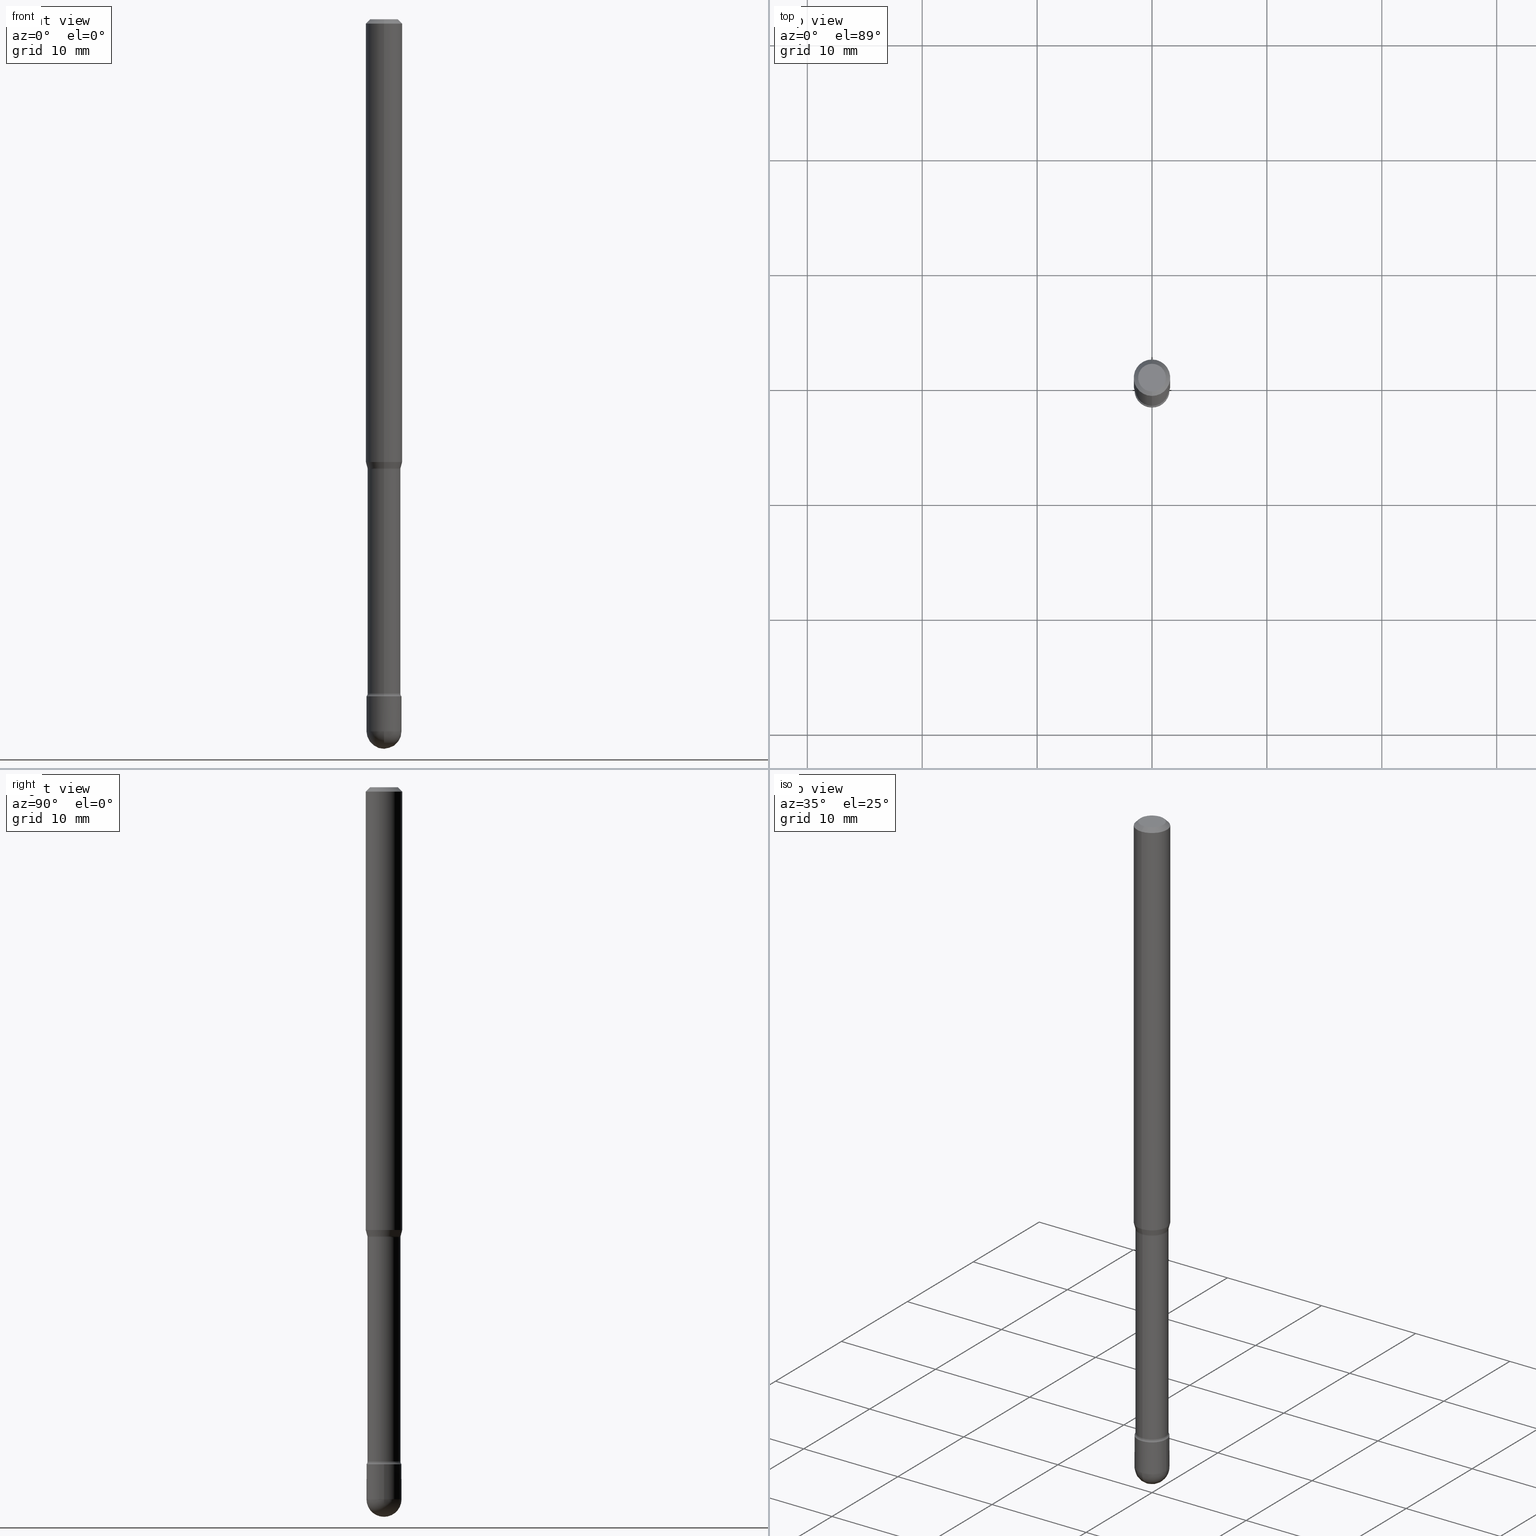
[diagram: canonical four-view strip — front | top / right | iso, engineering-drawing reading convention]
A machine part, canonical four-view strip (front | top / right | iso — engineering-drawing reading convention). The complete STEP part file that produces these views, byte-faithful:
ISO-10303-21;
HEADER;
FILE_DESCRIPTION (( 'STEP AP203' ),
    '1' );
FILE_NAME ('03885.STEP',
    '2024-04-09T20:57:08',
    ( '' ),
    ( '' ),
    'SwSTEP 2.0',
    'SolidWorks 2023',
    '' );
FILE_SCHEMA (( 'CONFIG_CONTROL_DESIGN' ));
ENDSEC;

DATA;
#1 = PLANE ( 'NONE',  #89 ) ;
#2 = APPROVAL_STATUS ( 'not_yet_approved' ) ;
#3 = ORIENTED_EDGE ( 'NONE', *, *, #251, .T. ) ;
#4 = DIRECTION ( 'NONE',  ( -2.445515084970645769E-29, 3.491415064988271555E-15, 1.000000000000000000 ) ) ;
#5 = SPHERICAL_SURFACE ( 'NONE', #43, 0.05999999999999994921 ) ;
#6 = COORDINATED_UNIVERSAL_TIME_OFFSET ( 5, 0, .BEHIND. ) ;
#7 = AXIS2_PLACEMENT_3D ( 'NONE', #273, #447, #68 ) ;
#8 = EDGE_CURVE ( 'NONE', #313, #351, #506, .T. ) ;
#9 = AXIS2_PLACEMENT_3D ( 'NONE', #411, #370, #40 ) ;
#10 = CIRCLE ( 'NONE', #266, 0.04749999999999999362 ) ;
#11 = DIRECTION ( 'NONE',  ( -6.982962677686265133E-15, -1.000000000000000000, 4.843702116425993696E-15 ) ) ;
#12 = ORIENTED_EDGE ( 'NONE', *, *, #186, .T. ) ;
#13 = ADVANCED_FACE ( 'NONE', ( #66 ), #120, .F. ) ;
#14 = ORIENTED_EDGE ( 'NONE', *, *, #61, .F. ) ;
#15 = DIRECTION ( 'NONE',  ( 1.000000000000000000, -6.982962677686266711E-15, 4.876176775795935793E-29 ) ) ;
#16 = PERSON_AND_ORGANIZATION ( #462, #459 ) ;
#17 = CONICAL_SURFACE ( 'NONE', #480, 0.06250000000000000000, 0.7853981633974483900 ) ;
#18 = CIRCLE ( 'NONE', #151, 0.05999999999999999778 ) ;
#19 = CARTESIAN_POINT ( 'NONE',  ( 3.668272627455988517E-31, -5.237122597482436421E-17, -0.01500000000000008271 ) ) ;
#20 = APPROVAL_STATUS ( 'not_yet_approved' ) ;
#21 = EDGE_CURVE ( 'NONE', #530, #441, #317, .T. ) ;
#22 = COORDINATED_UNIVERSAL_TIME_OFFSET ( 5, 0, .BEHIND. ) ;
#23 = VERTEX_POINT ( 'NONE', #393 ) ;
#24 = CIRCLE ( 'NONE', #326, 0.01500000000000003587 ) ;
#25 = APPROVAL_PERSON_ORGANIZATION ( #16, #461, #373 ) ;
#26 = VERTEX_POINT ( 'NONE', #184 ) ;
#27 = VERTEX_POINT ( 'NONE', #350 ) ;
#28 = CC_DESIGN_PERSON_AND_ORGANIZATION_ASSIGNMENT ( #247, #84, ( #44 ) ) ;
#29 = CARTESIAN_POINT ( 'NONE',  ( 3.710419832913296213E-29, -5.297295355763567225E-15, -1.517234490073829711 ) ) ;
#30 = CARTESIAN_POINT ( 'NONE',  ( -3.938390950215054539E-16, -0.05640000000000001262, 6.749892085565846117E-16 ) ) ;
#31 = DIRECTION ( 'NONE',  ( -6.982962677686265922E-15, -1.000000000000000000, 3.491415064988271555E-15 ) ) ;
#32 = ORIENTED_EDGE ( 'NONE', *, *, #423, .T. ) ;
#33 = AXIS2_PLACEMENT_3D ( 'NONE', #37, #127, #207 ) ;
#34 = CIRCLE ( 'NONE', #60, 0.05999999999999999778 ) ;
#35 = DIRECTION ( 'NONE',  ( -2.445515084970645769E-29, 3.491415064988271555E-15, 1.000000000000000000 ) ) ;
#36 = DIRECTION ( 'NONE',  ( 1.000000000000000000, -6.982962677686268288E-15, 0.000000000000000000 ) ) ;
#37 = CARTESIAN_POINT ( 'NONE',  ( 3.770851242666705328E-29, -5.383776195396521708E-15, -1.541974787463811003 ) ) ;
#38 = DIRECTION ( 'NONE',  ( -2.445515084970645769E-29, 3.491415064988271555E-15, 1.000000000000000000 ) ) ;
#39 = ADVANCED_FACE ( 'NONE', ( #543 ), #139, .T. ) ;
#40 = DIRECTION ( 'NONE',  ( 1.000000000000000000, -6.982962677686269077E-15, 0.000000000000000000 ) ) ;
#41 = FACE_OUTER_BOUND ( 'NONE', #371, .T. ) ;
#42 = AXIS2_PLACEMENT_3D ( 'NONE', #102, #492, #270 ) ;
#43 = AXIS2_PLACEMENT_3D ( 'NONE', #123, #383, #382 ) ;
#44 = PRODUCT_DEFINITION ( 'UNKNOWN', '', #91, #141 ) ;
#45 = CARTESIAN_POINT ( 'NONE',  ( 5.966943887091733341E-29, -8.519214466777275048E-15, -2.440000000000000391 ) ) ;
#46 = FACE_OUTER_BOUND ( 'NONE', #134, .T. ) ;
#47 = CALENDAR_DATE ( 2024, 9, 4 ) ;
#48 = DIRECTION ( 'NONE',  ( -2.445515084970645769E-29, 3.491415064988271555E-15, 1.000000000000000000 ) ) ;
#49 = DIRECTION ( 'NONE',  ( 6.982962677686265922E-15, 1.000000000000000000, -3.483106191921935554E-15 ) ) ;
#50 = CIRCLE ( 'NONE', #562, 0.06250000000000000000 ) ;
#51 = ORIENTED_EDGE ( 'NONE', *, *, #521, .T. ) ;
#52 = AXIS2_PLACEMENT_3D ( 'NONE', #107, #279, #36 ) ;
#53 = FACE_OUTER_BOUND ( 'NONE', #158, .T. ) ;
#54 = DATE_TIME_ROLE ( 'creation_date' ) ;
#55 = CARTESIAN_POINT ( 'NONE',  ( 4.135358722124351185E-16, 0.05639999999999198432, -2.310251153914437250 ) ) ;
#56 = DIRECTION ( 'NONE',  ( 6.982962677686265922E-15, 1.000000000000000000, -3.491415064988271555E-15 ) ) ;
#57 = EDGE_LOOP ( 'NONE', ( #153, #170, #51, #548, #63 ) ) ;
#58 = DIRECTION ( 'NONE',  ( -6.982962677686265922E-15, -1.000000000000000000, 3.483106191921935554E-15 ) ) ;
#59 = VECTOR ( 'NONE', #452, 39.37007874015748143 ) ;
#60 = AXIS2_PLACEMENT_3D ( 'NONE', #283, #321, #508 ) ;
#61 = EDGE_CURVE ( 'NONE', #192, #442, #67, .T. ) ;
#62 = DIRECTION ( 'NONE',  ( -1.000000000000000000, 6.982962677686265922E-15, -4.883557194083112340E-29 ) ) ;
#63 = ORIENTED_EDGE ( 'NONE', *, *, #362, .F. ) ;
#64 = CARTESIAN_POINT ( 'NONE',  ( -0.05999999999999999084, -7.883399944990626241E-15, -2.440000000000000391 ) ) ;
#65 = EDGE_CURVE ( 'NONE', #346, #160, #99, .T. ) ;
#66 = FACE_OUTER_BOUND ( 'NONE', #208, .T. ) ;
#67 = CIRCLE ( 'NONE', #211, 0.05691111260566396324 ) ;
#68 = DIRECTION ( 'NONE',  ( -6.982962677686265922E-15, -1.000000000000000000, 3.491415064988271555E-15 ) ) ;
#69 = DIRECTION ( 'NONE',  ( -2.445515084970645769E-29, 3.491415064988271555E-15, 1.000000000000000000 ) ) ;
#70 = CARTESIAN_POINT ( 'NONE',  ( -4.263256414560001423E-16, -0.06000000000000849792, -2.439999999999999947 ) ) ;
#71 = DIRECTION ( 'NONE',  ( -2.445515084970645769E-29, 3.491415064988271555E-15, 1.000000000000000000 ) ) ;
#72 = VERTEX_POINT ( 'NONE', #231 ) ;
#73 = CARTESIAN_POINT ( 'NONE',  ( 4.007461029687530474E-16, 0.05639999999999459335, -1.541974787463811225 ) ) ;
#74 = EDGE_LOOP ( 'NONE', ( #156, #299 ) ) ;
#75 = CARTESIAN_POINT ( 'NONE',  ( 3.761428415201016169E-29, -5.370119332085585633E-15, -1.538092501787273081 ) ) ;
#76 = CIRCLE ( 'NONE', #136, 0.01500000000000001853 ) ;
#77 = EDGE_CURVE ( 'NONE', #538, #189, #425, .T. ) ;
#78 = CONICAL_SURFACE ( 'NONE', #318, 0.05691111260566396324, 0.2617993877991485197 ) ;
#79 = DIRECTION ( 'NONE',  ( -2.445515084970645769E-29, 3.491415064988271555E-15, 1.000000000000000000 ) ) ;
#80 = EDGE_LOOP ( 'NONE', ( #485, #399 ) ) ;
#81 = CARTESIAN_POINT ( 'NONE',  ( -4.364351673553912750E-16, -0.06250000000000005551, -0.01499999999999986587 ) ) ;
#82 = EDGE_CURVE ( 'NONE', #446, #72, #50, .T. ) ;
#83 = CONICAL_SURFACE ( 'NONE', #408, 0.05691111260566396324, 0.2617993877991485197 ) ;
#84 = PERSON_AND_ORGANIZATION_ROLE ( 'creator' ) ;
#85 = VERTEX_POINT ( 'NONE', #70 ) ;
#86 = ORIENTED_EDGE ( 'NONE', *, *, #21, .T. ) ;
#87 = DIRECTION ( 'NONE',  ( -2.445515084970645769E-29, 3.491415064988271555E-15, 1.000000000000000000 ) ) ;
#88 = DIRECTION ( 'NONE',  ( -6.982962677686272233E-15, -1.000000000000000000, 0.000000000000000000 ) ) ;
#89 = AXIS2_PLACEMENT_3D ( 'NONE', #526, #520, #332 ) ;
#90 = ORIENTED_EDGE ( 'NONE', *, *, #111, .F. ) ;
#91 = PRODUCT_DEFINITION_FORMATION_WITH_SPECIFIED_SOURCE ( 'ANY', '', #487, .NOT_KNOWN. ) ;
#92 = ORIENTED_EDGE ( 'NONE', *, *, #8, .F. ) ;
#93 = CARTESIAN_POINT ( 'NONE',  ( 2.023889383251110788E-45, -2.888835415935318320E-31, -8.275018007965190757E-17 ) ) ;
#94 = EDGE_CURVE ( 'NONE', #442, #72, #396, .T. ) ;
#95 = CIRCLE ( 'NONE', #163, 0.05640000000000005426 ) ;
#96 = AXIS2_PLACEMENT_3D ( 'NONE', #363, #557, #110 ) ;
#97 = CC_DESIGN_DATE_AND_TIME_ASSIGNMENT ( #483, #301, ( #349 ) ) ;
#98 = PERSON_AND_ORGANIZATION_ROLE ( 'creator' ) ;
#99 = LINE ( 'NONE', #30, #375 ) ;
#100 =( LENGTH_UNIT ( ) NAMED_UNIT ( * ) SI_UNIT ( $, .METRE. ) );
#101 = PLANE ( 'NONE',  #7 ) ;
#102 = CARTESIAN_POINT ( 'NONE',  ( 3.668272627455988517E-31, -5.237122597482436421E-17, -0.01500000000000008271 ) ) ;
#103 = CIRCLE ( 'NONE', #239, 0.05639999999999997793 ) ;
#104 = CIRCLE ( 'NONE', #341, 0.05999999999999999084 ) ;
#105 = DIRECTION ( 'NONE',  ( -6.982962677686265922E-15, -1.000000000000000000, 4.553079989440439092E-15 ) ) ;
#106 = ORIENTED_EDGE ( 'NONE', *, *, #286, .T. ) ;
#107 = CARTESIAN_POINT ( 'NONE',  ( 5.673487630349517039E-29, -8.100236706116098414E-15, -2.320000000000000284 ) ) ;
#108 = CARTESIAN_POINT ( 'NONE',  ( 3.770922603387154700E-29, -5.383674002783237987E-15, -1.541974787463811003 ) ) ;
#109 = CARTESIAN_POINT ( 'NONE',  ( -0.05999999999999999084, 4.263256414560600464E-16, -2.951361054152942712E-30 ) ) ;
#110 = DIRECTION ( 'NONE',  ( -6.982962677686265133E-15, -1.000000000000000000, 4.843702116425993696E-15 ) ) ;
#111 = EDGE_CURVE ( 'NONE', #192, #446, #268, .T. ) ;
#112 = LOCAL_TIME ( 16, 57, 8.000000000000000000, #564 ) ;
#113 = DIMENSIONAL_EXPONENTS ( 1.000000000000000000, 0.000000000000000000, 0.000000000000000000, 0.000000000000000000, 0.000000000000000000, 0.000000000000000000, 0.000000000000000000 ) ;
#114 = ORIENTED_EDGE ( 'NONE', *, *, #352, .F. ) ;
#115 = APPLICATION_PROTOCOL_DEFINITION ( 'international standard', 'config_control_design', 1994, #389 ) ;
#116 = DIRECTION ( 'NONE',  ( -2.445468806185136597E-29, 3.491481338843145583E-15, 1.000000000000000000 ) ) ;
#117 = CC_DESIGN_PERSON_AND_ORGANIZATION_ASSIGNMENT ( #119, #560, ( #487 ) ) ;
#118 = FACE_OUTER_BOUND ( 'NONE', #80, .T. ) ;
#119 = PERSON_AND_ORGANIZATION ( #462, #459 ) ;
#120 = TOROIDAL_SURFACE ( 'NONE', #176, 0.07140000000000008840, 0.01500000000000003587 ) ;
#121 = CIRCLE ( 'NONE', #52, 0.05999999999999999778 ) ;
#122 = DATE_AND_TIME ( #161, #212 ) ;
#123 = CARTESIAN_POINT ( 'NONE',  ( 5.966943887091733341E-29, -8.519214466777275048E-15, -2.440000000000000391 ) ) ;
#124 = CARTESIAN_POINT ( 'NONE',  ( 0.000000000000000000, 0.000000000000000000, 0.000000000000000000 ) ) ;
#125 = EDGE_CURVE ( 'NONE', #72, #446, #202, .T. ) ;
#126 = APPLICATION_CONTEXT ( 'configuration controlled 3d designs of mechanical parts and assemblies' ) ;
#127 = DIRECTION ( 'NONE',  ( -2.445515084970645769E-29, 3.491415064988271555E-15, 1.000000000000000000 ) ) ;
#128 = FACE_OUTER_BOUND ( 'NONE', #354, .T. ) ;
#129 = ORIENTED_EDGE ( 'NONE', *, *, #423, .F. ) ;
#130 = FACE_OUTER_BOUND ( 'NONE', #57, .T. ) ;
#131 = ORIENTED_EDGE ( 'NONE', *, *, #440, .T. ) ;
#132 = AXIS2_PLACEMENT_3D ( 'NONE', #242, #200, #364 ) ;
#133 = EDGE_CURVE ( 'NONE', #188, #27, #277, .T. ) ;
#134 = EDGE_LOOP ( 'NONE', ( #92, #181, #430, #275 ) ) ;
#135 = EDGE_LOOP ( 'NONE', ( #474, #493, #357, #517, #197 ) ) ;
#136 = AXIS2_PLACEMENT_3D ( 'NONE', #261, #296, #88 ) ;
#137 = AXIS2_PLACEMENT_3D ( 'NONE', #465, #252, #527 ) ;
#138 = EDGE_CURVE ( 'NONE', #189, #530, #235, .T. ) ;
#139 = CYLINDRICAL_SURFACE ( 'NONE', #292, 0.05640000000000001262 ) ;
#140 = VERTEX_POINT ( 'NONE', #145 ) ;
#141 = DESIGN_CONTEXT ( 'detailed design', #389, 'design' ) ;
#142 = DIRECTION ( 'NONE',  ( -6.982962677686265922E-15, -1.000000000000000000, 4.370956789862821150E-15 ) ) ;
#143 = DIRECTION ( 'NONE',  ( -2.445515084970645769E-29, 3.491415064988271555E-15, 1.000000000000000000 ) ) ;
#144 = ORIENTED_EDGE ( 'NONE', *, *, #174, .T. ) ;
#145 = CARTESIAN_POINT ( 'NONE',  ( -4.189777606611193920E-16, -0.06000000000000811629, -2.319999999999999840 ) ) ;
#146 =( NAMED_UNIT ( * ) SI_UNIT ( $, .STERADIAN. ) SOLID_ANGLE_UNIT ( ) );
#147 = ADVANCED_FACE ( 'NONE', ( #281 ), #265, .F. ) ;
#148 = CARTESIAN_POINT ( 'NONE',  ( 0.000000000000000000, 0.000000000000000000, 0.000000000000000000 ) ) ;
#149 = EDGE_CURVE ( 'NONE', #424, #23, #361, .T. ) ;
#150 = VECTOR ( 'NONE', #541, 39.37007874015748143 ) ;
#151 = AXIS2_PLACEMENT_3D ( 'NONE', #454, #237, #561 ) ;
#152 = DIRECTION ( 'NONE',  ( 1.000000000000000000, -6.982962677686266711E-15, 4.876176775795935793E-29 ) ) ;
#153 = ORIENTED_EDGE ( 'NONE', *, *, #133, .F. ) ;
#154 = APPROVAL_DATE_TIME ( #523, #337 ) ;
#155 = DIRECTION ( 'NONE',  ( -6.982962677686265922E-15, -1.000000000000000000, 4.800201346603758890E-15 ) ) ;
#156 = ORIENTED_EDGE ( 'NONE', *, *, #342, .T. ) ;
#157 = FACE_OUTER_BOUND ( 'NONE', #303, .T. ) ;
#158 = EDGE_LOOP ( 'NONE', ( #233, #221, #227, #86 ) ) ;
#159 = CARTESIAN_POINT ( 'NONE',  ( -3.938390950214674900E-16, -0.05640000000000536251, -1.541974787463810781 ) ) ;
#160 = VERTEX_POINT ( 'NONE', #159 ) ;
#161 = CALENDAR_DATE ( 2024, 9, 4 ) ;
#162 = CARTESIAN_POINT ( 'NONE',  ( 3.316907271900976096E-16, 0.04749999999999999362, 3.181939381885421102E-17 ) ) ;
#163 = AXIS2_PLACEMENT_3D ( 'NONE', #376, #4, #11 ) ;
#164 = DATE_AND_TIME ( #213, #327 ) ;
#165 = ADVANCED_FACE ( 'NONE', ( #118 ), #1, .T. ) ;
#166 = CARTESIAN_POINT ( 'NONE',  ( -3.773273898774340269E-16, -0.04749999999999999362, 8.309203550729098388E-17 ) ) ;
#167 = LINE ( 'NONE', #175, #387 ) ;
#168 = APPROVAL_DATE_TIME ( #164, #461 ) ;
#169 = ORIENTED_EDGE ( 'NONE', *, *, #61, .T. ) ;
#170 = ORIENTED_EDGE ( 'NONE', *, *, #241, .T. ) ;
#171 = ADVANCED_FACE ( 'NONE', ( #460 ), #83, .T. ) ;
#172 = DIRECTION ( 'NONE',  ( -2.445515084970645769E-29, 3.491415064988271555E-15, 1.000000000000000000 ) ) ;
#173 = ORIENTED_EDGE ( 'NONE', *, *, #385, .F. ) ;
#174 = EDGE_CURVE ( 'NONE', #346, #313, #95, .T. ) ;
#175 = CARTESIAN_POINT ( 'NONE',  ( 0.05999999999999999084, -4.189777606611759435E-16, 2.925706065477561055E-30 ) ) ;
#176 = AXIS2_PLACEMENT_3D ( 'NONE', #537, #307, #31 ) ;
#177 = AXIS2_PLACEMENT_3D ( 'NONE', #218, #533, #300 ) ;
#178 = DIRECTION ( 'NONE',  ( -6.982962677686268288E-15, -1.000000000000000000, 0.000000000000000000 ) ) ;
#179 = EDGE_LOOP ( 'NONE', ( #90, #169, #395, #331 ) ) ;
#180 = CARTESIAN_POINT ( 'NONE',  ( 5.649647131350973229E-29, -8.066198791933100712E-15, -2.310251153914436806 ) ) ;
#181 = ORIENTED_EDGE ( 'NONE', *, *, #380, .T. ) ;
#182 = ORIENTED_EDGE ( 'NONE', *, *, #352, .T. ) ;
#183 = DATE_AND_TIME ( #269, #394 ) ;
#184 = CARTESIAN_POINT ( 'NONE',  ( 0.05999999999999999778, -8.519214466777275048E-15, -2.320000000000000284 ) ) ;
#185 = AXIS2_PLACEMENT_3D ( 'NONE', #421, #210, #49 ) ;
#186 = EDGE_CURVE ( 'NONE', #446, #530, #335, .T. ) ;
#187 = CIRCLE ( 'NONE', #137, 0.05999999999999994921 ) ;
#188 = VERTEX_POINT ( 'NONE', #64 ) ;
#189 = VERTEX_POINT ( 'NONE', #546 ) ;
#190 = EDGE_LOOP ( 'NONE', ( #278, #507, #131, #238 ) ) ;
#191 = ADVANCED_FACE ( 'NONE', ( #498 ), #101, .F. ) ;
#192 = VERTEX_POINT ( 'NONE', #230 ) ;
#193 = AXIS2_PLACEMENT_3D ( 'NONE', #272, #398, #445 ) ;
#194 = AXIS2_PLACEMENT_3D ( 'NONE', #162, #528, #56 ) ;
#195 = CARTESIAN_POINT ( 'NONE',  ( 5.673594997131898498E-29, -8.100082950772790954E-15, -2.320000000000000284 ) ) ;
#196 = CARTESIAN_POINT ( 'NONE',  ( 5.073275133327491387E-16, 0.07139999999999460667, -1.541974787463811225 ) ) ;
#197 = ORIENTED_EDGE ( 'NONE', *, *, #149, .T. ) ;
#198 = CARTESIAN_POINT ( 'NONE',  ( 3.770851242666705328E-29, -5.383776195396521708E-15, -1.541974787463811003 ) ) ;
#199 = CC_DESIGN_PERSON_AND_ORGANIZATION_ASSIGNMENT ( #429, #219, ( #349 ) ) ;
#200 = DIRECTION ( 'NONE',  ( -1.000000000000000000, 7.105427357601001070E-15, -4.926315508542082329E-29 ) ) ;
#201 = PERSON_AND_ORGANIZATION ( #462, #459 ) ;
#202 = CIRCLE ( 'NONE', #531, 0.06250000000000000000 ) ;
#203 = FACE_OUTER_BOUND ( 'NONE', #232, .T. ) ;
#204 = ORIENTED_EDGE ( 'NONE', *, *, #94, .F. ) ;
#205 = ORIENTED_EDGE ( 'NONE', *, *, #291, .F. ) ;
#206 = CARTESIAN_POINT ( 'NONE',  ( 4.440892098500625669E-16, 0.06250000000000000000, 2.598599573294790911E-16 ) ) ;
#207 = DIRECTION ( 'NONE',  ( -6.982962677686265922E-15, -1.000000000000000000, 3.491415064988271555E-15 ) ) ;
#208 = EDGE_LOOP ( 'NONE', ( #173, #384, #509, #182 ) ) ;
#209 = EDGE_CURVE ( 'NONE', #442, #192, #340, .T. ) ;
#210 = DIRECTION ( 'NONE',  ( 2.445515084970645769E-29, -3.491415064988271555E-15, -1.000000000000000000 ) ) ;
#211 = AXIS2_PLACEMENT_3D ( 'NONE', #499, #451, #453 ) ;
#212 = LOCAL_TIME ( 16, 57, 8.000000000000000000, #372 ) ;
#213 = CALENDAR_DATE ( 2024, 9, 4 ) ;
#214 = ORIENTED_EDGE ( 'NONE', *, *, #385, .T. ) ;
#215 = CYLINDRICAL_SURFACE ( 'NONE', #333, 0.05999999999999999084 ) ;
#216 = DIRECTION ( 'NONE',  ( -6.982962677686265133E-15, -1.000000000000000000, 3.491415064988270766E-15 ) ) ;
#217 = EDGE_CURVE ( 'NONE', #351, #160, #103, .T. ) ;
#218 = CARTESIAN_POINT ( 'NONE',  ( -1.169113584055446105E-44, 1.669184350826100908E-30, 4.780733988912460139E-16 ) ) ;
#219 = PERSON_AND_ORGANIZATION_ROLE ( 'classification_officer' ) ;
#220 = PRODUCT_DEFINITION_SHAPE ( 'NONE', 'NONE',  #44 ) ;
#221 = ORIENTED_EDGE ( 'NONE', *, *, #342, .F. ) ;
#222 = DIRECTION ( 'NONE',  ( 2.445515084970645769E-29, -3.491415064988271555E-15, -1.000000000000000000 ) ) ;
#223 = VECTOR ( 'NONE', #35, 39.37007874015748143 ) ;
#224 = DIRECTION ( 'NONE',  ( -2.445468806185136597E-29, 3.491481338843145583E-15, 1.000000000000000000 ) ) ;
#225 = DIRECTION ( 'NONE',  ( -1.807323732225318306E-15, -0.2588190451025164651, 0.9659258262890694224 ) ) ;
#226 = EDGE_CURVE ( 'NONE', #192, #351, #365, .T. ) ;
#227 = ORIENTED_EDGE ( 'NONE', *, *, #138, .T. ) ;
#228 = CC_DESIGN_SECURITY_CLASSIFICATION ( #349, ( #91 ) ) ;
#229 = UNCERTAINTY_MEASURE_WITH_UNIT (LENGTH_MEASURE( 1.000000000000000082E-05 ), #555, 'distance_accuracy_value', 'NONE');
#230 = CARTESIAN_POINT ( 'NONE',  ( 4.242334931549666614E-16, 0.05691111260565859253, -1.538092501787273303 ) ) ;
#231 = CARTESIAN_POINT ( 'NONE',  ( -4.364351673553543464E-16, -0.06250000000000527356, -1.517234490073829489 ) ) ;
#232 = EDGE_LOOP ( 'NONE', ( #436, #355, #479, #204 ) ) ;
#233 = ORIENTED_EDGE ( 'NONE', *, *, #234, .F. ) ;
#234 = EDGE_CURVE ( 'NONE', #538, #441, #504, .T. ) ;
#235 = LINE ( 'NONE', #401, #276 ) ;
#236 = CARTESIAN_POINT ( 'NONE',  ( 4.007461029686965452E-16, 0.05640000000000001262, 2.811575892259075641E-16 ) ) ;
#237 = DIRECTION ( 'NONE',  ( -2.445468806185136597E-29, 3.491481338843145583E-15, 1.000000000000000000 ) ) ;
#238 = ORIENTED_EDGE ( 'NONE', *, *, #21, .F. ) ;
#239 = AXIS2_PLACEMENT_3D ( 'NONE', #108, #280, #455 ) ;
#240 = AXIS2_PLACEMENT_3D ( 'NONE', #403, #79, #288 ) ;
#241 = EDGE_CURVE ( 'NONE', #188, #85, #501, .T. ) ;
#242 = CARTESIAN_POINT ( 'NONE',  ( 5.966943887091733341E-29, -8.519214466777275048E-15, -2.440000000000000391 ) ) ;
#243 = DIRECTION ( 'NONE',  ( -2.445515084970645769E-29, 3.491415064988271555E-15, 1.000000000000000000 ) ) ;
#244 = CC_DESIGN_DATE_AND_TIME_ASSIGNMENT ( #122, #54, ( #44 ) ) ;
#245 = DIRECTION ( 'NONE',  ( 6.982962677686265922E-15, 1.000000000000000000, -4.553079989440442247E-15 ) ) ;
#246 = DIRECTION ( 'NONE',  ( -2.445515084970645769E-29, 3.491415064988271555E-15, 1.000000000000000000 ) ) ;
#247 = PERSON_AND_ORGANIZATION ( #462, #459 ) ;
#248 = CONICAL_SURFACE ( 'NONE', #185, 0.06250000000000000000, 0.7853981633974483900 ) ;
#249 = VECTOR ( 'NONE', #71, 39.37007874015748143 ) ;
#250 = DIRECTION ( 'NONE',  ( 7.105427357600997914E-15, 1.000000000000000000, 0.000000000000000000 ) ) ;
#251 = EDGE_CURVE ( 'NONE', #442, #160, #76, .T. ) ;
#252 = DIRECTION ( 'NONE',  ( 1.000000000000000000, -6.982962677686265922E-15, 4.883557194083112340E-29 ) ) ;
#253 = CARTESIAN_POINT ( 'NONE',  ( 3.668272627455988517E-31, -5.237122597482436421E-17, -0.01500000000000008271 ) ) ;
#254 = CALENDAR_DATE ( 2024, 9, 4 ) ;
#255 = ORIENTED_EDGE ( 'NONE', *, *, #234, .T. ) ;
#256 = CARTESIAN_POINT ( 'NONE',  ( -4.985835351867435539E-16, -0.07140000000000815139, -2.310251153914436806 ) ) ;
#257 = VECTOR ( 'NONE', #225, 39.37007874015748143 ) ;
#258 = AXIS2_PLACEMENT_3D ( 'NONE', #458, #262, #250 ) ;
#259 = EDGE_CURVE ( 'NONE', #424, #26, #167, .T. ) ;
#260 = ORIENTED_EDGE ( 'NONE', *, *, #138, .F. ) ;
#261 = CARTESIAN_POINT ( 'NONE',  ( -4.985835351867615991E-16, -0.07140000000000537583, -1.541974787463810781 ) ) ;
#262 = DIRECTION ( 'NONE',  ( 1.000000000000000000, -7.105427357601001070E-15, 4.926314696921440222E-29 ) ) ;
#263 = DIRECTION ( 'NONE',  ( -2.445515084970645769E-29, 3.491415064988271555E-15, 1.000000000000000000 ) ) ;
#264 = FACE_OUTER_BOUND ( 'NONE', #347, .T. ) ;
#265 = TOROIDAL_SURFACE ( 'NONE', #33, 0.07139999999999999125, 0.01500000000000002720 ) ;
#266 = AXIS2_PLACEMENT_3D ( 'NONE', #93, #263, #434 ) ;
#267 = ADVANCED_FACE ( 'NONE', ( #264 ), #17, .T. ) ;
#268 = LINE ( 'NONE', #448, #522 ) ;
#269 = CALENDAR_DATE ( 2024, 9, 4 ) ;
#270 = DIRECTION ( 'NONE',  ( -6.982962677686265922E-15, -1.000000000000000000, 3.483106191921935554E-15 ) ) ;
#271 = PERSON_AND_ORGANIZATION ( #462, #459 ) ;
#272 = CARTESIAN_POINT ( 'NONE',  ( 2.023889383251110788E-45, -2.888835415935318320E-31, -8.275018007965190757E-17 ) ) ;
#273 = CARTESIAN_POINT ( 'NONE',  ( 4.189777606612326922E-16, 0.05999999999999190009, -2.320000000000000284 ) ) ;
#274 = DIRECTION ( 'NONE',  ( 7.105427357600993970E-15, 1.000000000000000000, 0.000000000000000000 ) ) ;
#275 = ORIENTED_EDGE ( 'NONE', *, *, #217, .F. ) ;
#276 = VECTOR ( 'NONE', #552, 39.37007874015748143 ) ;
#277 = LINE ( 'NONE', #109, #59 ) ;
#278 = ORIENTED_EDGE ( 'NONE', *, *, #186, .F. ) ;
#279 = DIRECTION ( 'NONE',  ( -2.445468806185136597E-29, 3.491481338843145583E-15, 1.000000000000000000 ) ) ;
#280 = DIRECTION ( 'NONE',  ( -2.445515084970645769E-29, 3.491415064988271555E-15, 1.000000000000000000 ) ) ;
#281 = FACE_OUTER_BOUND ( 'NONE', #505, .T. ) ;
#282 = VERTEX_POINT ( 'NONE', #302 ) ;
#283 = CARTESIAN_POINT ( 'NONE',  ( 5.673594997131898498E-29, -8.100082950772790954E-15, -2.320000000000000284 ) ) ;
#284 = AXIS2_PLACEMENT_3D ( 'NONE', #344, #437, #536 ) ;
#285 = CC_DESIGN_APPROVAL ( #484, ( #91 ) ) ;
#286 = EDGE_CURVE ( 'NONE', #441, #530, #457, .T. ) ;
#287 = CYLINDRICAL_SURFACE ( 'NONE', #450, 0.06250000000000000000 ) ;
#288 = DIRECTION ( 'NONE',  ( -6.982962677686265133E-15, -1.000000000000000000, 4.843702116426000796E-15 ) ) ;
#289 = MECHANICAL_CONTEXT ( 'NONE', #126, 'mechanical' ) ;
#290 = DIRECTION ( 'NONE',  ( -2.445468806185136597E-29, 3.491481338843145583E-15, 1.000000000000000000 ) ) ;
#291 = EDGE_CURVE ( 'NONE', #23, #188, #540, .T. ) ;
#292 = AXIS2_PLACEMENT_3D ( 'NONE', #311, #497, #358 ) ;
#293 = CIRCLE ( 'NONE', #308, 0.05999999999999999778 ) ;
#294 = ORIENTED_EDGE ( 'NONE', *, *, #539, .T. ) ;
#295 = CC_DESIGN_PERSON_AND_ORGANIZATION_ASSIGNMENT ( #547, #98, ( #91 ) ) ;
#296 = DIRECTION ( 'NONE',  ( -1.000000000000000000, 6.982962677686265922E-15, -4.883557194083112340E-29 ) ) ;
#297 = DIRECTION ( 'NONE',  ( -6.982962677686265922E-15, -1.000000000000000000, 3.491415064988271555E-15 ) ) ;
#298 = AXIS2_PLACEMENT_3D ( 'NONE', #196, #314, #274 ) ;
#299 = ORIENTED_EDGE ( 'NONE', *, *, #77, .T. ) ;
#300 = DIRECTION ( 'NONE',  ( -6.982962677686265922E-15, -1.000000000000000000, 3.491415064988271949E-15 ) ) ;
#301 = DATE_TIME_ROLE ( 'classification_date' ) ;
#302 = CARTESIAN_POINT ( 'NONE',  ( 4.263256414561169430E-16, 0.05999999999999191397, -2.320000000000000284 ) ) ;
#303 = EDGE_LOOP ( 'NONE', ( #435, #466, #489, #205 ) ) ;
#304 = ADVANCED_FACE ( 'NONE', ( #53 ), #248, .T. ) ;
#305 = AXIS2_PLACEMENT_3D ( 'NONE', #486, #224, #391 ) ;
#306 = VECTOR ( 'NONE', #463, 39.37007874015748143 ) ;
#307 = DIRECTION ( 'NONE',  ( -2.445515084970645769E-29, 3.491415064988271555E-15, 1.000000000000000000 ) ) ;
#308 = AXIS2_PLACEMENT_3D ( 'NONE', #195, #243, #105 ) ;
#309 = ORIENTED_EDGE ( 'NONE', *, *, #432, .F. ) ;
#310 = MANIFOLD_SOLID_BREP ( 'Body-Move/Copy2[1]', #449 ) ;
#311 = CARTESIAN_POINT ( 'NONE',  ( -1.169113584055446105E-44, 1.669184350826100908E-30, 4.780733988912460139E-16 ) ) ;
#312 = ADVANCED_FACE ( 'NONE', ( #128 ), #348, .F. ) ;
#313 = VERTEX_POINT ( 'NONE', #55 ) ;
#314 = DIRECTION ( 'NONE',  ( 1.000000000000000000, -7.105427357601001070E-15, 4.926314696921440222E-29 ) ) ;
#315 = DIRECTION ( 'NONE',  ( -6.982962677686265922E-15, -1.000000000000000000, 4.370956789862821150E-15 ) ) ;
#316 = EDGE_LOOP ( 'NONE', ( #114, #129 ) ) ;
#317 = CIRCLE ( 'NONE', #42, 0.06250000000000000000 ) ;
#318 = AXIS2_PLACEMENT_3D ( 'NONE', #405, #38, #324 ) ;
#319 = ORIENTED_EDGE ( 'NONE', *, *, #251, .F. ) ;
#320 = EDGE_LOOP ( 'NONE', ( #336, #294, #554, #400 ) ) ;
#321 = DIRECTION ( 'NONE',  ( -2.445515084970645769E-29, 3.491415064988271555E-15, 1.000000000000000000 ) ) ;
#322 = DIRECTION ( 'NONE',  ( -2.445515084970645769E-29, 3.491415064988271555E-15, 1.000000000000000000 ) ) ;
#323 = EDGE_CURVE ( 'NONE', #346, #140, #24, .T. ) ;
#324 = DIRECTION ( 'NONE',  ( -6.982962677686265922E-15, -1.000000000000000000, 4.800201346603758890E-15 ) ) ;
#325 = EDGE_LOOP ( 'NONE', ( #144, #511, #309, #343 ) ) ;
#326 = AXIS2_PLACEMENT_3D ( 'NONE', #256, #62, #178 ) ;
#327 = LOCAL_TIME ( 16, 57, 8.000000000000000000, #6 ) ;
#328 = SPHERICAL_SURFACE ( 'NONE', #470, 0.05999999999999994921 ) ;
#329 = FACE_OUTER_BOUND ( 'NONE', #74, .T. ) ;
#330 = ADVANCED_FACE ( 'NONE', ( #428 ), #215, .T. ) ;
#331 = ORIENTED_EDGE ( 'NONE', *, *, #82, .F. ) ;
#332 = DIRECTION ( 'NONE',  ( 1.000000000000000000, -6.982962677686265922E-15, 4.876176775795935793E-29 ) ) ;
#333 = AXIS2_PLACEMENT_3D ( 'NONE', #339, #381, #15 ) ;
#334 = ADVANCED_FACE ( 'NONE', ( #431 ), #482, .T. ) ;
#335 = LINE ( 'NONE', #206, #150 ) ;
#336 = ORIENTED_EDGE ( 'NONE', *, *, #545, .F. ) ;
#337 = APPROVAL ( #366, 'UNSPECIFIED' ) ;
#338 = ORIENTED_EDGE ( 'NONE', *, *, #440, .F. ) ;
#339 = CARTESIAN_POINT ( 'NONE',  ( 0.000000000000000000, 0.000000000000000000, 0.000000000000000000 ) ) ;
#340 = CIRCLE ( 'NONE', #490, 0.05691111260566396324 ) ;
#341 = AXIS2_PLACEMENT_3D ( 'NONE', #519, #290, #525 ) ;
#342 = EDGE_CURVE ( 'NONE', #189, #538, #10, .T. ) ;
#343 = ORIENTED_EDGE ( 'NONE', *, *, #65, .F. ) ;
#344 = CARTESIAN_POINT ( 'NONE',  ( 5.966943887091733341E-29, -8.519214466777275048E-15, -2.440000000000000391 ) ) ;
#345 = APPROVAL_ROLE ( '' ) ;
#346 = VERTEX_POINT ( 'NONE', #535 ) ;
#347 = EDGE_LOOP ( 'NONE', ( #426, #255, #106, #260 ) ) ;
#348 = TOROIDAL_SURFACE ( 'NONE', #515, 0.07140000000000008840, 0.01500000000000003587 ) ;
#349 = SECURITY_CLASSIFICATION ( '', '', #353 ) ;
#350 = CARTESIAN_POINT ( 'NONE',  ( -0.06000000000000001166, -7.883399944990626241E-15, -2.320000000000000284 ) ) ;
#351 = VERTEX_POINT ( 'NONE', #73 ) ;
#352 = EDGE_CURVE ( 'NONE', #140, #282, #34, .T. ) ;
#353 = SECURITY_CLASSIFICATION_LEVEL ( 'unclassified' ) ;
#354 = EDGE_LOOP ( 'NONE', ( #420, #214, #32, #360 ) ) ;
#355 = ORIENTED_EDGE ( 'NONE', *, *, #111, .T. ) ;
#356 = DIRECTION ( 'NONE',  ( -2.445515084970645769E-29, 3.491415064988271555E-15, 1.000000000000000000 ) ) ;
#357 = ORIENTED_EDGE ( 'NONE', *, *, #444, .F. ) ;
#358 = DIRECTION ( 'NONE',  ( -6.982962677686265133E-15, -1.000000000000000000, 3.491415064988270766E-15 ) ) ;
#359 = ORIENTED_EDGE ( 'NONE', *, *, #125, .T. ) ;
#360 = ORIENTED_EDGE ( 'NONE', *, *, #323, .F. ) ;
#361 = CIRCLE ( 'NONE', #9, 0.05999999999999999084 ) ;
#362 = EDGE_CURVE ( 'NONE', #27, #26, #121, .T. ) ;
#363 = CARTESIAN_POINT ( 'NONE',  ( 5.649754046968597168E-29, -8.066045682683404419E-15, -2.310251153914436806 ) ) ;
#364 = DIRECTION ( 'NONE',  ( -7.105427357601001070E-15, -1.000000000000000000, 0.000000000000000000 ) ) ;
#365 = CIRCLE ( 'NONE', #298, 0.01500000000000003587 ) ;
#366 = APPROVAL_STATUS ( 'not_yet_approved' ) ;
#367 = AXIS2_PLACEMENT_3D ( 'NONE', #148, #410, #566 ) ;
#368 = PRODUCT_RELATED_PRODUCT_CATEGORY ( 'detail', '', ( #487 ) ) ;
#369 = CARTESIAN_POINT ( 'NONE',  ( -1.169113584055446105E-44, 1.669184350826100908E-30, 4.780733988912460139E-16 ) ) ;
#370 = DIRECTION ( 'NONE',  ( -2.445468806185136597E-29, 3.491481338843145583E-15, 1.000000000000000000 ) ) ;
#371 = EDGE_LOOP ( 'NONE', ( #14, #551, #407, #319 ) ) ;
#372 = COORDINATED_UNIVERSAL_TIME_OFFSET ( 5, 0, .BEHIND. ) ;
#373 = APPROVAL_ROLE ( '' ) ;
#374 = CYLINDRICAL_SURFACE ( 'NONE', #532, 0.05999999999999999084 ) ;
#375 = VECTOR ( 'NONE', #69, 39.37007874015748143 ) ;
#376 = CARTESIAN_POINT ( 'NONE',  ( 5.649754046968597168E-29, -8.066045682683404419E-15, -2.310251153914436806 ) ) ;
#377 = AXIS2_PLACEMENT_3D ( 'NONE', #473, #87, #216 ) ;
#378 = DIRECTION ( 'NONE',  ( 6.982962677686265922E-15, 1.000000000000000000, -3.483106191921935554E-15 ) ) ;
#379 = PLANE ( 'NONE',  #194 ) ;
#380 = EDGE_CURVE ( 'NONE', #313, #346, #553, .T. ) ;
#381 = DIRECTION ( 'NONE',  ( -2.445468806185136597E-29, 3.491481338843145583E-15, 1.000000000000000000 ) ) ;
#382 = DIRECTION ( 'NONE',  ( 6.982962677686265922E-15, 1.000000000000000000, -4.553079989440442247E-15 ) ) ;
#383 = DIRECTION ( 'NONE',  ( -1.000000000000000000, 6.982962677686265922E-15, -4.883557194083113462E-29 ) ) ;
#384 = ORIENTED_EDGE ( 'NONE', *, *, #174, .F. ) ;
#385 = EDGE_CURVE ( 'NONE', #313, #282, #409, .T. ) ;
#386 = DIRECTION ( 'NONE',  ( -2.445468806185136877E-29, 3.491481338843145188E-15, 1.000000000000000000 ) ) ;
#387 = VECTOR ( 'NONE', #386, 39.37007874015748143 ) ;
#388 = APPROVAL_PERSON_ORGANIZATION ( #201, #337, #469 ) ;
#389 = APPLICATION_CONTEXT ( 'configuration controlled 3d designs of mechanical parts and assemblies' ) ;
#390 = VERTEX_POINT ( 'NONE', #471 ) ;
#391 = DIRECTION ( 'NONE',  ( 1.000000000000000000, -6.982962677686269077E-15, 0.000000000000000000 ) ) ;
#392 = CC_DESIGN_PERSON_AND_ORGANIZATION_ASSIGNMENT ( #271, #443, ( #91 ) ) ;
#393 = CARTESIAN_POINT ( 'NONE',  ( 4.189777606612354039E-16, 0.05999999999999145600, -2.440000000000000391 ) ) ;
#394 = LOCAL_TIME ( 16, 57, 8.000000000000000000, #22 ) ;
#395 = ORIENTED_EDGE ( 'NONE', *, *, #94, .T. ) ;
#396 = LINE ( 'NONE', #500, #257 ) ;
#397 = DIRECTION ( 'NONE',  ( 1.839019923739588088E-15, 0.2588190451025232375, 0.9659258262890676461 ) ) ;
#398 = DIRECTION ( 'NONE',  ( -2.445515084970645769E-29, 3.491415064988271555E-15, 1.000000000000000000 ) ) ;
#399 = ORIENTED_EDGE ( 'NONE', *, *, #362, .T. ) ;
#400 = ORIENTED_EDGE ( 'NONE', *, *, #521, .F. ) ;
#401 = CARTESIAN_POINT ( 'NONE',  ( 4.364351673553919652E-16, 0.06249999999999995143, -0.01500000000000030129 ) ) ;
#402 = LENGTH_MEASURE_WITH_UNIT ( LENGTH_MEASURE( 0.02539999999999999897 ), #100 );
#403 = CARTESIAN_POINT ( 'NONE',  ( 3.770922603387154700E-29, -5.383674002783237987E-15, -1.541974787463811003 ) ) ;
#404 = ADVANCED_FACE ( 'NONE', ( #130 ), #374, .T. ) ;
#405 = CARTESIAN_POINT ( 'NONE',  ( 3.761428415201016169E-29, -5.370119332085585633E-15, -1.538092501787273081 ) ) ;
#406 = EDGE_LOOP ( 'NONE', ( #359, #12, #494, #338 ) ) ;
#407 = ORIENTED_EDGE ( 'NONE', *, *, #217, .T. ) ;
#408 = AXIS2_PLACEMENT_3D ( 'NONE', #419, #48, #155 ) ;
#409 = CIRCLE ( 'NONE', #258, 0.01500000000000003587 ) ;
#410 = DIRECTION ( 'NONE',  ( 0.000000000000000000, 0.000000000000000000, 1.000000000000000000 ) ) ;
#411 = CARTESIAN_POINT ( 'NONE',  ( 5.966943887091733341E-29, -8.519214466777275048E-15, -2.440000000000000391 ) ) ;
#412 =( NAMED_UNIT ( * ) PLANE_ANGLE_UNIT ( ) SI_UNIT ( $, .RADIAN. ) );
#413 = APPLICATION_PROTOCOL_DEFINITION ( 'international standard', 'config_control_design', 1994, #126 ) ;
#414 = CARTESIAN_POINT ( 'NONE',  ( 0.05999999999999999084, -8.728703347107863365E-15, -2.440000000000000391 ) ) ;
#415 = ADVANCED_FACE ( 'NONE', ( #41 ), #563, .F. ) ;
#416 = CARTESIAN_POINT ( 'NONE',  ( -3.974081752709142271E-16, -0.05691111260566933394, -1.538092501787272859 ) ) ;
#417 = CIRCLE ( 'NONE', #132, 0.05999999999999994921 ) ;
#418 = FACE_OUTER_BOUND ( 'NONE', #320, .T. ) ;
#419 = CARTESIAN_POINT ( 'NONE',  ( 3.761428415201016169E-29, -5.370119332085585633E-15, -1.538092501787273081 ) ) ;
#420 = ORIENTED_EDGE ( 'NONE', *, *, #380, .F. ) ;
#421 = CARTESIAN_POINT ( 'NONE',  ( 3.668272627455988517E-31, -5.237122597482436421E-17, -0.01500000000000008271 ) ) ;
#422 = CARTESIAN_POINT ( 'NONE',  ( 4.440892098500998898E-16, 0.06249999999999993755, -0.01500000000000030129 ) ) ;
#423 = EDGE_CURVE ( 'NONE', #282, #140, #293, .T. ) ;
#424 = VERTEX_POINT ( 'NONE', #414 ) ;
#425 = CIRCLE ( 'NONE', #193, 0.04749999999999999362 ) ;
#426 = ORIENTED_EDGE ( 'NONE', *, *, #77, .F. ) ;
#427 = LOCAL_TIME ( 16, 57, 8.000000000000000000, #534 ) ;
#428 = FACE_OUTER_BOUND ( 'NONE', #135, .T. ) ;
#429 = PERSON_AND_ORGANIZATION ( #462, #459 ) ;
#430 = ORIENTED_EDGE ( 'NONE', *, *, #65, .T. ) ;
#431 = FACE_OUTER_BOUND ( 'NONE', #406, .T. ) ;
#432 = EDGE_CURVE ( 'NONE', #160, #351, #516, .T. ) ;
#433 = ORIENTED_EDGE ( 'NONE', *, *, #226, .F. ) ;
#434 = DIRECTION ( 'NONE',  ( -6.982962677686266711E-15, -1.000000000000000000, 3.491415064988271949E-15 ) ) ;
#435 = ORIENTED_EDGE ( 'NONE', *, *, #539, .F. ) ;
#436 = ORIENTED_EDGE ( 'NONE', *, *, #209, .T. ) ;
#437 = DIRECTION ( 'NONE',  ( -2.445468806185136597E-29, 3.491481338843145583E-15, 1.000000000000000000 ) ) ;
#438 = CLOSED_SHELL ( 'NONE', ( #415, #39, #312, #267, #334, #472, #171, #477, #304, #503, #191, #13, #529, #147 ) ) ;
#439 =( GEOMETRIC_REPRESENTATION_CONTEXT ( 3 ) GLOBAL_UNCERTAINTY_ASSIGNED_CONTEXT ( ( #229 ) ) GLOBAL_UNIT_ASSIGNED_CONTEXT ( ( #555, #412, #146 ) ) REPRESENTATION_CONTEXT ( 'NONE', 'WORKASPACE' ) );
#440 = EDGE_CURVE ( 'NONE', #72, #441, #556, .T. ) ;
#441 = VERTEX_POINT ( 'NONE', #81 ) ;
#442 = VERTEX_POINT ( 'NONE', #416 ) ;
#443 = PERSON_AND_ORGANIZATION_ROLE ( 'design_supplier' ) ;
#444 = EDGE_CURVE ( 'NONE', #26, #27, #18, .T. ) ;
#445 = DIRECTION ( 'NONE',  ( -6.982962677686266711E-15, -1.000000000000000000, 3.491415064988271949E-15 ) ) ;
#446 = VERTEX_POINT ( 'NONE', #558 ) ;
#447 = DIRECTION ( 'NONE',  ( -2.445515084970645489E-29, 3.491415064988271555E-15, 1.000000000000000000 ) ) ;
#448 = CARTESIAN_POINT ( 'NONE',  ( 4.043777764598335315E-16, 0.05691111260565859253, -1.538092501787273303 ) ) ;
#449 = CLOSED_SHELL ( 'NONE', ( #330, #495, #165, #559, #404 ) ) ;
#450 = AXIS2_PLACEMENT_3D ( 'NONE', #369, #502, #565 ) ;
#451 = DIRECTION ( 'NONE',  ( -2.445515084970645769E-29, 3.491415064988271555E-15, 1.000000000000000000 ) ) ;
#452 = DIRECTION ( 'NONE',  ( -2.445468806185136877E-29, 3.491481338843145188E-15, 1.000000000000000000 ) ) ;
#453 = DIRECTION ( 'NONE',  ( -6.982962677686265922E-15, -1.000000000000000000, 4.800201346603758890E-15 ) ) ;
#454 = CARTESIAN_POINT ( 'NONE',  ( 5.673487630349517039E-29, -8.100236706116098414E-15, -2.320000000000000284 ) ) ;
#455 = DIRECTION ( 'NONE',  ( -6.982962677686265133E-15, -1.000000000000000000, 4.843702116426000796E-15 ) ) ;
#456 = DIRECTION ( 'NONE',  ( -6.982962677686265922E-15, -1.000000000000000000, 3.491415064988271555E-15 ) ) ;
#457 = CIRCLE ( 'NONE', #468, 0.06250000000000000000 ) ;
#458 = CARTESIAN_POINT ( 'NONE',  ( 5.073275133327685644E-16, 0.07139999999999202540, -2.310251153914437250 ) ) ;
#459 = ORGANIZATION ( 'UNSPECIFIED', 'UNSPECIFIED', '' ) ;
#460 = FACE_OUTER_BOUND ( 'NONE', #179, .T. ) ;
#461 = APPROVAL ( #2, 'UNSPECIFIED' ) ;
#462 = PERSON ( 'UNSPECIFIED', 'UNSPECIFIED', 'UNSPECIFIED', ('UNSPECIFIED'), ('UNSPECIFIED'), ('UNSPECIFIED') ) ;
#463 = DIRECTION ( 'NONE',  ( -4.851104656540964275E-15, -0.7071067811865500152, -0.7071067811865450192 ) ) ;
#464 = CARTESIAN_POINT ( 'NONE',  ( -4.364351673553916201E-16, -0.06250000000000000000, 6.962868404530130354E-16 ) ) ;
#465 = CARTESIAN_POINT ( 'NONE',  ( 5.966943887091733341E-29, -8.519214466777275048E-15, -2.440000000000000391 ) ) ;
#466 = ORIENTED_EDGE ( 'NONE', *, *, #545, .T. ) ;
#467 = ORIENTED_EDGE ( 'NONE', *, *, #432, .T. ) ;
#468 = AXIS2_PLACEMENT_3D ( 'NONE', #19, #172, #58 ) ;
#469 = APPROVAL_ROLE ( '' ) ;
#470 = AXIS2_PLACEMENT_3D ( 'NONE', #45, #518, #245 ) ;
#471 = CARTESIAN_POINT ( 'NONE',  ( 6.116237514330379097E-29, -8.725029406710421437E-15, -2.500000000000000000 ) ) ;
#472 = ADVANCED_FACE ( 'NONE', ( #203 ), #78, .T. ) ;
#473 = CARTESIAN_POINT ( 'NONE',  ( -1.169113584055446105E-44, 1.669184350826100908E-30, 4.780733988912460139E-16 ) ) ;
#474 = ORIENTED_EDGE ( 'NONE', *, *, #291, .T. ) ;
#475 = DIRECTION ( 'NONE',  ( -2.445515084970645769E-29, 3.491415064988271555E-15, 1.000000000000000000 ) ) ;
#476 = CYLINDRICAL_SURFACE ( 'NONE', #377, 0.05640000000000001262 ) ;
#477 = ADVANCED_FACE ( 'NONE', ( #514 ), #287, .T. ) ;
#478 = SHAPE_DEFINITION_REPRESENTATION ( #220, #549 ) ;
#479 = ORIENTED_EDGE ( 'NONE', *, *, #125, .F. ) ;
#480 = AXIS2_PLACEMENT_3D ( 'NONE', #253, #222, #378 ) ;
#481 = CC_DESIGN_APPROVAL ( #461, ( #349 ) ) ;
#482 = CYLINDRICAL_SURFACE ( 'NONE', #177, 0.06250000000000000000 ) ;
#483 = DATE_AND_TIME ( #254, #427 ) ;
#484 = APPROVAL ( #20, 'UNSPECIFIED' ) ;
#485 = ORIENTED_EDGE ( 'NONE', *, *, #444, .T. ) ;
#486 = CARTESIAN_POINT ( 'NONE',  ( 5.966943887091733341E-29, -8.519214466777275048E-15, -2.440000000000000391 ) ) ;
#487 = PRODUCT ( '03885', '03885', '', ( #289 ) ) ;
#488 = PERSON_AND_ORGANIZATION ( #462, #459 ) ;
#489 = ORIENTED_EDGE ( 'NONE', *, *, #241, .F. ) ;
#490 = AXIS2_PLACEMENT_3D ( 'NONE', #75, #322, #510 ) ;
#491 = AXIS2_PLACEMENT_3D ( 'NONE', #198, #246, #456 ) ;
#492 = DIRECTION ( 'NONE',  ( -2.445515084970645769E-29, 3.491415064988271555E-15, 1.000000000000000000 ) ) ;
#493 = ORIENTED_EDGE ( 'NONE', *, *, #133, .T. ) ;
#494 = ORIENTED_EDGE ( 'NONE', *, *, #286, .F. ) ;
#495 = ADVANCED_FACE ( 'NONE', ( #157 ), #5, .T. ) ;
#496 = APPROVAL_DATE_TIME ( #183, #484 ) ;
#497 = DIRECTION ( 'NONE',  ( -2.445515084970645769E-29, 3.491415064988271555E-15, 1.000000000000000000 ) ) ;
#498 = FACE_OUTER_BOUND ( 'NONE', #316, .T. ) ;
#499 = CARTESIAN_POINT ( 'NONE',  ( 3.761428415201016169E-29, -5.370119332085585633E-15, -1.538092501787273081 ) ) ;
#500 = CARTESIAN_POINT ( 'NONE',  ( -3.974081752709142271E-16, -0.05691111260566933394, -1.538092501787272859 ) ) ;
#501 = CIRCLE ( 'NONE', #305, 0.05999999999999999084 ) ;
#502 = DIRECTION ( 'NONE',  ( -2.445515084970645769E-29, 3.491415064988271555E-15, 1.000000000000000000 ) ) ;
#503 = ADVANCED_FACE ( 'NONE', ( #329 ), #379, .F. ) ;
#504 = LINE ( 'NONE', #513, #306 ) ;
#505 = EDGE_LOOP ( 'NONE', ( #433, #544, #3, #467 ) ) ;
#506 = LINE ( 'NONE', #236, #223 ) ;
#507 = ORIENTED_EDGE ( 'NONE', *, *, #82, .T. ) ;
#508 = DIRECTION ( 'NONE',  ( -6.982962677686265922E-15, -1.000000000000000000, 4.553079989440439092E-15 ) ) ;
#509 = ORIENTED_EDGE ( 'NONE', *, *, #323, .T. ) ;
#510 = DIRECTION ( 'NONE',  ( -6.982962677686265922E-15, -1.000000000000000000, 4.800201346603758890E-15 ) ) ;
#511 = ORIENTED_EDGE ( 'NONE', *, *, #8, .T. ) ;
#512 = MANIFOLD_SOLID_BREP ( 'Body-Move/Copy2[2]', #438 ) ;
#513 = CARTESIAN_POINT ( 'NONE',  ( -4.287811248607203282E-16, -0.06250000000000005551, -0.01499999999999986587 ) ) ;
#514 = FACE_OUTER_BOUND ( 'NONE', #190, .T. ) ;
#515 = AXIS2_PLACEMENT_3D ( 'NONE', #180, #475, #297 ) ;
#516 = CIRCLE ( 'NONE', #240, 0.05639999999999997793 ) ;
#517 = ORIENTED_EDGE ( 'NONE', *, *, #259, .F. ) ;
#518 = DIRECTION ( 'NONE',  ( -1.000000000000000000, 6.982962677686265922E-15, -4.883557194083113462E-29 ) ) ;
#519 = CARTESIAN_POINT ( 'NONE',  ( 5.966943887091733341E-29, -8.519214466777275048E-15, -2.440000000000000391 ) ) ;
#520 = DIRECTION ( 'NONE',  ( -2.438088387897960049E-29, 3.491481338843145188E-15, 1.000000000000000000 ) ) ;
#521 = EDGE_CURVE ( 'NONE', #85, #424, #104, .T. ) ;
#522 = VECTOR ( 'NONE', #397, 39.37007874015748143 ) ;
#523 = DATE_AND_TIME ( #47, #112 ) ;
#524 = CC_DESIGN_APPROVAL ( #337, ( #44 ) ) ;
#525 = DIRECTION ( 'NONE',  ( 1.000000000000000000, -6.982962677686269077E-15, 0.000000000000000000 ) ) ;
#526 = CARTESIAN_POINT ( 'NONE',  ( 5.673487630349517039E-29, -8.100236706116098414E-15, -2.320000000000000284 ) ) ;
#527 = DIRECTION ( 'NONE',  ( 6.982962677686265922E-15, 1.000000000000000000, 0.000000000000000000 ) ) ;
#528 = DIRECTION ( 'NONE',  ( 2.445515084970645489E-29, -3.491415064988271555E-15, -1.000000000000000000 ) ) ;
#529 = ADVANCED_FACE ( 'NONE', ( #46 ), #476, .T. ) ;
#530 = VERTEX_POINT ( 'NONE', #422 ) ;
#531 = AXIS2_PLACEMENT_3D ( 'NONE', #29, #356, #142 ) ;
#532 = AXIS2_PLACEMENT_3D ( 'NONE', #124, #116, #152 ) ;
#533 = DIRECTION ( 'NONE',  ( -2.445515084970645769E-29, 3.491415064988271555E-15, 1.000000000000000000 ) ) ;
#534 = COORDINATED_UNIVERSAL_TIME_OFFSET ( 5, 0, .BEHIND. ) ;
#535 = CARTESIAN_POINT ( 'NONE',  ( -3.938390950214492969E-16, -0.05640000000000812419, -2.310251153914436806 ) ) ;
#536 = DIRECTION ( 'NONE',  ( 1.000000000000000000, -6.982962677686269077E-15, 0.000000000000000000 ) ) ;
#537 = CARTESIAN_POINT ( 'NONE',  ( 5.649647131350973229E-29, -8.066198791933100712E-15, -2.310251153914436806 ) ) ;
#538 = VERTEX_POINT ( 'NONE', #166 ) ;
#539 = EDGE_CURVE ( 'NONE', #390, #23, #187, .T. ) ;
#540 = CIRCLE ( 'NONE', #284, 0.05999999999999999084 ) ;
#541 = DIRECTION ( 'NONE',  ( -2.445515084970645769E-29, 3.491415064988271555E-15, 1.000000000000000000 ) ) ;
#542 = APPROVAL_PERSON_ORGANIZATION ( #488, #484, #345 ) ;
#543 = FACE_OUTER_BOUND ( 'NONE', #325, .T. ) ;
#544 = ORIENTED_EDGE ( 'NONE', *, *, #209, .F. ) ;
#545 = EDGE_CURVE ( 'NONE', #390, #85, #417, .T. ) ;
#546 = CARTESIAN_POINT ( 'NONE',  ( 3.840629472727447874E-16, 0.04749999999999999362, -2.485923956665947867E-16 ) ) ;
#547 = PERSON_AND_ORGANIZATION ( #462, #459 ) ;
#548 = ORIENTED_EDGE ( 'NONE', *, *, #259, .T. ) ;
#549 = ADVANCED_BREP_SHAPE_REPRESENTATION ( '03885', ( #310, #512, #367 ), #439 ) ;
#550 = CARTESIAN_POINT ( 'NONE',  ( 3.710419832913296213E-29, -5.297295355763567225E-15, -1.517234490073829711 ) ) ;
#551 = ORIENTED_EDGE ( 'NONE', *, *, #226, .T. ) ;
#552 = DIRECTION ( 'NONE',  ( 4.937700262164548042E-15, 0.7071067811865451302, -0.7071067811865499042 ) ) ;
#553 = CIRCLE ( 'NONE', #96, 0.05640000000000005426 ) ;
#554 = ORIENTED_EDGE ( 'NONE', *, *, #149, .F. ) ;
#555 =( CONVERSION_BASED_UNIT ( 'INCH', #402 ) LENGTH_UNIT ( ) NAMED_UNIT ( #113 ) );
#556 = LINE ( 'NONE', #464, #249 ) ;
#557 = DIRECTION ( 'NONE',  ( -2.445515084970645769E-29, 3.491415064988271555E-15, 1.000000000000000000 ) ) ;
#558 = CARTESIAN_POINT ( 'NONE',  ( 4.440892098500996926E-16, 0.06249999999999472644, -1.517234490073829933 ) ) ;
#559 = ADVANCED_FACE ( 'NONE', ( #418 ), #328, .T. ) ;
#560 = PERSON_AND_ORGANIZATION_ROLE ( 'design_owner' ) ;
#561 = DIRECTION ( 'NONE',  ( 1.000000000000000000, -6.982962677686268288E-15, 0.000000000000000000 ) ) ;
#562 = AXIS2_PLACEMENT_3D ( 'NONE', #550, #143, #315 ) ;
#563 = TOROIDAL_SURFACE ( 'NONE', #491, 0.07139999999999999125, 0.01500000000000002720 ) ;
#564 = COORDINATED_UNIVERSAL_TIME_OFFSET ( 5, 0, .BEHIND. ) ;
#565 = DIRECTION ( 'NONE',  ( -6.982962677686265922E-15, -1.000000000000000000, 3.491415064988271949E-15 ) ) ;
#566 = DIRECTION ( 'NONE',  ( 1.000000000000000000, 0.000000000000000000, 0.000000000000000000 ) ) ;
ENDSEC;
END-ISO-10303-21;
